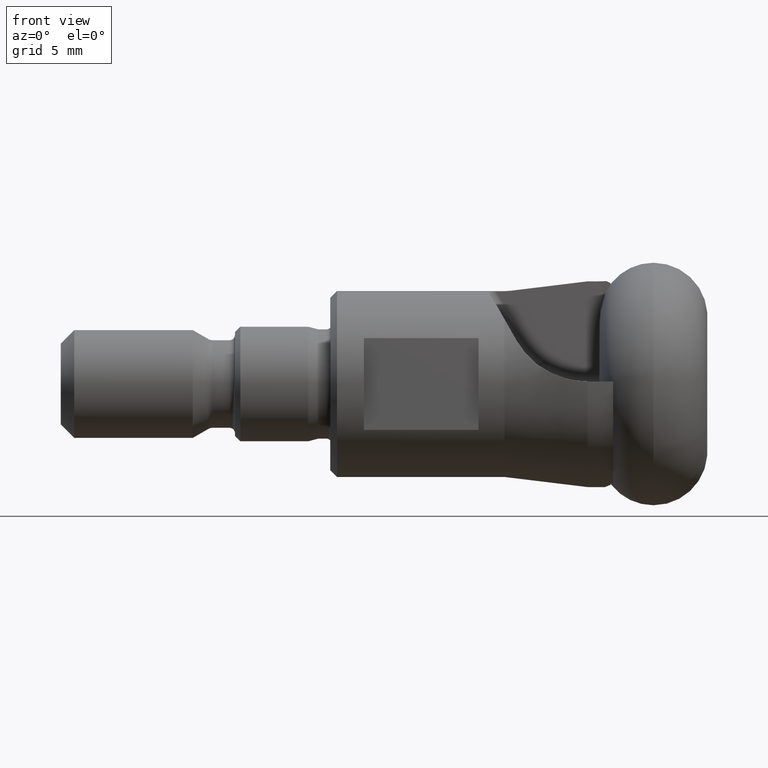
[diagram: clean part render]
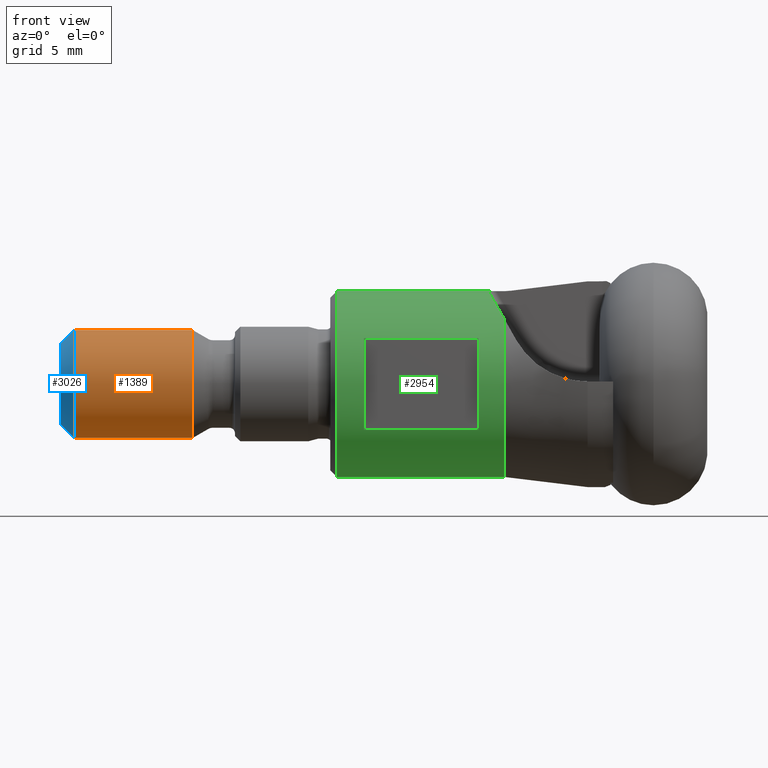
[diagram: same view with three faces highlighted in distinct colors, each labeled with its STEP entity id]
A machine part, front view with three faces highlighted in distinct colors.
Their STEP definitions:

[orange] entity #1389 — the highlighted cylindrical surface (partial cylindrical patch) has radius 4 mm, axis along (1, -0, -0).
#9 = AXIS2_PLACEMENT_3D ( 'NONE', #3181, #2158, #896 ) ;
#19 = VERTEX_POINT ( 'NONE', #1190 ) ;
#60 = DIRECTION ( 'NONE',  ( 1.000000000000000000, -0.0000000000000000000, -0.0000000000000000000 ) ) ;
#171 = CARTESIAN_POINT ( 'NONE',  ( 0.0000000000000000000, 0.0000000000000000000, -3.999999999999994700 ) ) ;
#175 = CIRCLE ( 'NONE', #2106, 3.999999999999994200 ) ;
#245 = VERTEX_POINT ( 'NONE', #580 ) ;
#265 = ORIENTED_EDGE ( 'NONE', *, *, #1737, .F. ) ;
#350 = ORIENTED_EDGE ( 'NONE', *, *, #2694, .F. ) ;
#411 = EDGE_LOOP ( 'NONE', ( #265, #1644, #1175, #350 ) ) ;
#436 = CIRCLE ( 'NONE', #9, 3.999999999999994700 ) ;
#489 = VERTEX_POINT ( 'NONE', #523 ) ;
#523 = CARTESIAN_POINT ( 'NONE',  ( -37.29999999999999700, 4.898587196589406900E-016, -3.999999999999994700 ) ) ;
#544 = CARTESIAN_POINT ( 'NONE',  ( -46.10000000000000100, 0.0000000000000000000, -3.999999999999994200 ) ) ;
#580 = CARTESIAN_POINT ( 'NONE',  ( -37.29999999999999700, 0.0000000000000000000, 3.999999999999994700 ) ) ;
#716 = DIRECTION ( 'NONE',  ( 1.000000000000000000, -0.0000000000000000000, -0.0000000000000000000 ) ) ;
#896 = DIRECTION ( 'NONE',  ( 0.0000000000000000000, 0.0000000000000000000, -1.000000000000000000 ) ) ;
#1081 = CARTESIAN_POINT ( 'NONE',  ( 0.0000000000000000000, 0.0000000000000000000, 0.0000000000000000000 ) ) ;
#1175 = ORIENTED_EDGE ( 'NONE', *, *, #2465, .T. ) ;
#1190 = CARTESIAN_POINT ( 'NONE',  ( -46.10000000000000100, 4.898587196589405900E-016, 3.999999999999994200 ) ) ;
#1211 = DIRECTION ( 'NONE',  ( 0.0000000000000000000, 0.0000000000000000000, -1.000000000000000000 ) ) ;
#1268 = VERTEX_POINT ( 'NONE', #544 ) ;
#1389 = ADVANCED_FACE ( 'NONE', ( #2549 ), #2839, .T. ) ;
#1428 = VECTOR ( 'NONE', #2494, 1000.000000000000000 ) ;
#1462 = CARTESIAN_POINT ( 'NONE',  ( -46.10000000000000100, 0.0000000000000000000, 0.0000000000000000000 ) ) ;
#1591 = DIRECTION ( 'NONE',  ( 0.0000000000000000000, 0.0000000000000000000, -1.000000000000000000 ) ) ;
#1644 = ORIENTED_EDGE ( 'NONE', *, *, #1744, .T. ) ;
#1737 = EDGE_CURVE ( 'NONE', #19, #245, #2887, .T. ) ;
#1744 = EDGE_CURVE ( 'NONE', #19, #1268, #175, .T. ) ;
#1854 = AXIS2_PLACEMENT_3D ( 'NONE', #1081, #60, #1591 ) ;
#2007 = CARTESIAN_POINT ( 'NONE',  ( 0.0000000000000000000, 4.898587196589406900E-016, 3.999999999999994700 ) ) ;
#2106 = AXIS2_PLACEMENT_3D ( 'NONE', #1462, #716, #1211 ) ;
#2158 = DIRECTION ( 'NONE',  ( 1.000000000000000000, -0.0000000000000000000, -0.0000000000000000000 ) ) ;
#2465 = EDGE_CURVE ( 'NONE', #1268, #489, #3258, .T. ) ;
#2494 = DIRECTION ( 'NONE',  ( 1.000000000000000000, -0.0000000000000000000, -0.0000000000000000000 ) ) ;
#2549 = FACE_OUTER_BOUND ( 'NONE', #411, .T. ) ;
#2694 = EDGE_CURVE ( 'NONE', #245, #489, #436, .T. ) ;
#2742 = DIRECTION ( 'NONE',  ( 1.000000000000000000, -0.0000000000000000000, -0.0000000000000000000 ) ) ;
#2839 = CYLINDRICAL_SURFACE ( 'NONE', #1854, 3.999999999999994700 ) ;
#2887 = LINE ( 'NONE', #2007, #3283 ) ;
#3181 = CARTESIAN_POINT ( 'NONE',  ( -37.29999999999999700, 0.0000000000000000000, 0.0000000000000000000 ) ) ;
#3258 = LINE ( 'NONE', #171, #1428 ) ;
#3283 = VECTOR ( 'NONE', #2742, 1000.000000000000000 ) ;

[blue] entity #3026 — the highlighted conical surface has half-angle 45 deg.
#19 = VERTEX_POINT ( 'NONE', #1190 ) ;
#115 = CARTESIAN_POINT ( 'NONE',  ( -46.10000000000000100, 0.0000000000000000000, -3.999999999999994200 ) ) ;
#175 = CIRCLE ( 'NONE', #2106, 3.999999999999994200 ) ;
#179 = CIRCLE ( 'NONE', #3174, 2.999999999999993300 ) ;
#544 = CARTESIAN_POINT ( 'NONE',  ( -46.10000000000000100, 0.0000000000000000000, -3.999999999999994200 ) ) ;
#552 = VERTEX_POINT ( 'NONE', #1579 ) ;
#601 = FACE_OUTER_BOUND ( 'NONE', #1471, .T. ) ;
#716 = DIRECTION ( 'NONE',  ( 1.000000000000000000, -0.0000000000000000000, -0.0000000000000000000 ) ) ;
#787 = LINE ( 'NONE', #3229, #3182 ) ;
#808 = VERTEX_POINT ( 'NONE', #966 ) ;
#839 = CARTESIAN_POINT ( 'NONE',  ( -46.10000000000000100, 0.0000000000000000000, 0.0000000000000000000 ) ) ;
#918 = ORIENTED_EDGE ( 'NONE', *, *, #2479, .F. ) ;
#966 = CARTESIAN_POINT ( 'NONE',  ( -47.10000000000000100, 4.286263797015728700E-016, 2.999999999999993300 ) ) ;
#1094 = EDGE_CURVE ( 'NONE', #552, #1268, #2075, .T. ) ;
#1105 = DIRECTION ( 'NONE',  ( 0.0000000000000000000, 0.0000000000000000000, -1.000000000000000000 ) ) ;
#1115 = CARTESIAN_POINT ( 'NONE',  ( -47.10000000000000100, 0.0000000000000000000, 0.0000000000000000000 ) ) ;
#1190 = CARTESIAN_POINT ( 'NONE',  ( -46.10000000000000100, 4.898587196589405900E-016, 3.999999999999994200 ) ) ;
#1211 = DIRECTION ( 'NONE',  ( 0.0000000000000000000, 0.0000000000000000000, -1.000000000000000000 ) ) ;
#1268 = VERTEX_POINT ( 'NONE', #544 ) ;
#1413 = ORIENTED_EDGE ( 'NONE', *, *, #1744, .F. ) ;
#1462 = CARTESIAN_POINT ( 'NONE',  ( -46.10000000000000100, 0.0000000000000000000, 0.0000000000000000000 ) ) ;
#1471 = EDGE_LOOP ( 'NONE', ( #918, #2067, #1829, #1413 ) ) ;
#1480 = EDGE_CURVE ( 'NONE', #808, #552, #179, .T. ) ;
#1579 = CARTESIAN_POINT ( 'NONE',  ( -47.10000000000000100, 0.0000000000000000000, -2.999999999999993300 ) ) ;
#1744 = EDGE_CURVE ( 'NONE', #19, #1268, #175, .T. ) ;
#1829 = ORIENTED_EDGE ( 'NONE', *, *, #1094, .T. ) ;
#2067 = ORIENTED_EDGE ( 'NONE', *, *, #1480, .T. ) ;
#2075 = LINE ( 'NONE', #115, #3165 ) ;
#2106 = AXIS2_PLACEMENT_3D ( 'NONE', #1462, #716, #1211 ) ;
#2136 = DIRECTION ( 'NONE',  ( 1.000000000000000000, -0.0000000000000000000, -0.0000000000000000000 ) ) ;
#2159 = DIRECTION ( 'NONE',  ( 0.7071067811865475700, 0.0000000000000000000, -0.7071067811865474600 ) ) ;
#2205 = DIRECTION ( 'NONE',  ( 0.7071067811865475700, 8.659560562354931600E-017, 0.7071067811865474600 ) ) ;
#2220 = AXIS2_PLACEMENT_3D ( 'NONE', #839, #2627, #1105 ) ;
#2479 = EDGE_CURVE ( 'NONE', #808, #19, #787, .T. ) ;
#2627 = DIRECTION ( 'NONE',  ( 1.000000000000000000, -0.0000000000000000000, -0.0000000000000000000 ) ) ;
#2909 = DIRECTION ( 'NONE',  ( 0.0000000000000000000, 0.0000000000000000000, -1.000000000000000000 ) ) ;
#3026 = ADVANCED_FACE ( 'NONE', ( #601 ), #3224, .T. ) ;
#3165 = VECTOR ( 'NONE', #2159, 1000.000000000000000 ) ;
#3174 = AXIS2_PLACEMENT_3D ( 'NONE', #1115, #2136, #2909 ) ;
#3182 = VECTOR ( 'NONE', #2205, 1000.000000000000000 ) ;
#3224 = CONICAL_SURFACE ( 'NONE', #2220, 3.999999999999994200, 0.7853981633974482800 ) ;
#3229 = CARTESIAN_POINT ( 'NONE',  ( -46.10000000000000100, 4.898587196589405900E-016, 3.999999999999994200 ) ) ;

[green] entity #2954 — the highlighted cylindrical surface (partial cylindrical patch) has radius 6.9 mm, axis along (1, -0, -0).
#31 = LINE ( 'NONE', #2383, #1238 ) ;
#72 = VECTOR ( 'NONE', #2632, 1000.000000000000000 ) ;
#108 = CARTESIAN_POINT ( 'NONE',  ( -24.60000000000000100, 0.0000000000000000000, 0.0000000000000000000 ) ) ;
#148 = ORIENTED_EDGE ( 'NONE', *, *, #741, .F. ) ;
#163 = EDGE_LOOP ( 'NONE', ( #2058, #1438, #711, #2278, #148, #2902, #3242, #879 ) ) ;
#190 = FACE_OUTER_BOUND ( 'NONE', #163, .T. ) ;
#215 = LINE ( 'NONE', #632, #72 ) ;
#223 = VERTEX_POINT ( 'NONE', #2340 ) ;
#244 = CIRCLE ( 'NONE', #1768, 6.899999999999998600 ) ;
#291 = CIRCLE ( 'NONE', #2237, 6.899999999999998600 ) ;
#348 = CYLINDRICAL_SURFACE ( 'NONE', #1650, 6.899999999999998600 ) ;
#437 = CARTESIAN_POINT ( 'NONE',  ( -26.60000000000000100, 8.450062914116734700E-016, 6.899999999999997700 ) ) ;
#449 = DIRECTION ( 'NONE',  ( 0.0000000000000000000, 0.0000000000000000000, -1.000000000000000000 ) ) ;
#508 = CARTESIAN_POINT ( 'NONE',  ( -14.76897280574238600, -0.6999999999999517700, 6.864400920692208500 ) ) ;
#522 = CARTESIAN_POINT ( 'NONE',  ( -15.30452766106162900, -1.199999999999952000, 6.794850991743683900 ) ) ;
#573 = CARTESIAN_POINT ( 'NONE',  ( 0.0000000000000000000, 0.0000000000000000000, -6.899999999999998600 ) ) ;
#632 = CARTESIAN_POINT ( 'NONE',  ( 0.0000000000000000000, -6.000000000000001800, -3.407345007480157200 ) ) ;
#665 = VECTOR ( 'NONE', #1927, 1000.000000000000000 ) ;
#681 = CARTESIAN_POINT ( 'NONE',  ( -14.76875074425068800, -3.938996049009159800, 5.851883618156448600 ) ) ;
#688 = AXIS2_PLACEMENT_3D ( 'NONE', #3130, #3184, #3153 ) ;
#708 = VECTOR ( 'NONE', #1320, 1000.000000000000000 ) ;
#711 = ORIENTED_EDGE ( 'NONE', *, *, #1075, .T. ) ;
#741 = EDGE_CURVE ( 'NONE', #2702, #1035, #2454, .T. ) ;
#794 = DIRECTION ( 'NONE',  ( 0.0000000000000000000, 0.0000000000000000000, -1.000000000000000000 ) ) ;
#818 = EDGE_CURVE ( 'NONE', #2663, #1732, #1326, .T. ) ;
#850 = CIRCLE ( 'NONE', #688, 6.899999999999998600 ) ;
#879 = ORIENTED_EDGE ( 'NONE', *, *, #2234, .F. ) ;
#913 = CARTESIAN_POINT ( 'NONE',  ( -15.15962975045093600, -2.644020910368085600, 6.539830669068878800 ) ) ;
#914 = CARTESIAN_POINT ( 'NONE',  ( -26.60000000000000100, 0.0000000000000000000, 0.0000000000000000000 ) ) ;
#940 = DIRECTION ( 'NONE',  ( -1.000000000000000000, -2.011296631198347200E-016, -0.0000000000000000000 ) ) ;
#970 = VERTEX_POINT ( 'NONE', #1496 ) ;
#981 = CARTESIAN_POINT ( 'NONE',  ( -15.04777263965825200, -0.7441036666017455400, 6.860365702013950800 ) ) ;
#1004 = VERTEX_POINT ( 'NONE', #2617 ) ;
#1031 = DIRECTION ( 'NONE',  ( 1.000000000000000000, -0.0000000000000000000, -0.0000000000000000000 ) ) ;
#1035 = VERTEX_POINT ( 'NONE', #2605 ) ;
#1075 = EDGE_CURVE ( 'NONE', #2182, #223, #1728, .T. ) ;
#1097 = DIRECTION ( 'NONE',  ( 0.0000000000000000000, -1.000000000000000000, 0.0000000000000000000 ) ) ;
#1157 = EDGE_CURVE ( 'NONE', #1035, #223, #850, .T. ) ;
#1170 = B_SPLINE_CURVE_WITH_KNOTS ( 'NONE', 3,
 ( #522, #1285, #2033, #2043, #2308, #981, #2288, #508 ),
 .UNSPECIFIED., .F., .F.,
 ( 4, 2, 2, 4 ),
 ( 4.336808689942017700E-019, 0.0002066999104266479600, 0.0004133998208532955000, 0.0008267996417065905600 ),
 .UNSPECIFIED. ) ;
#1191 = CARTESIAN_POINT ( 'NONE',  ( 0.0000000000000000000, -6.000000000000001800, 3.407345007480157200 ) ) ;
#1238 = VECTOR ( 'NONE', #3172, 1000.000000000000000 ) ;
#1283 = AXIS2_PLACEMENT_3D ( 'NONE', #108, #2894, #1097 ) ;
#1285 = CARTESIAN_POINT ( 'NONE',  ( -15.31139833881096000, -1.131528327105431500, 6.806943384582503100 ) ) ;
#1312 = EDGE_CURVE ( 'NONE', #2702, #1732, #1170, .T. ) ;
#1320 = DIRECTION ( 'NONE',  ( 1.000000000000000000, -0.0000000000000000000, -0.0000000000000000000 ) ) ;
#1326 = LINE ( 'NONE', #1454, #1923 ) ;
#1438 = ORIENTED_EDGE ( 'NONE', *, *, #2140, .T. ) ;
#1441 = EDGE_CURVE ( 'NONE', #2441, #2684, #31, .T. ) ;
#1454 = CARTESIAN_POINT ( 'NONE',  ( 0.0000000000000000000, -0.6999999999999517700, 6.864400920692208500 ) ) ;
#1457 = VERTEX_POINT ( 'NONE', #1872 ) ;
#1496 = CARTESIAN_POINT ( 'NONE',  ( -16.10000000000000100, -6.000000000000001800, -3.407345007480157200 ) ) ;
#1566 = EDGE_CURVE ( 'NONE', #1457, #2562, #3114, .T. ) ;
#1615 = EDGE_CURVE ( 'NONE', #970, #1457, #244, .T. ) ;
#1630 = ORIENTED_EDGE ( 'NONE', *, *, #1566, .F. ) ;
#1639 = CARTESIAN_POINT ( 'NONE',  ( -14.17000000000000000, -0.6999999999999517700, 6.864400920692209400 ) ) ;
#1647 = CARTESIAN_POINT ( 'NONE',  ( -26.60000000000000100, 0.0000000000000000000, -6.899999999999997700 ) ) ;
#1650 = AXIS2_PLACEMENT_3D ( 'NONE', #3107, #1031, #794 ) ;
#1653 = CIRCLE ( 'NONE', #2056, 6.899999999999997700 ) ;
#1667 = CARTESIAN_POINT ( 'NONE',  ( -15.30452766106162900, -1.199999999999952000, 6.794850991743683900 ) ) ;
#1710 = DIRECTION ( 'NONE',  ( 1.000000000000000000, -0.0000000000000000000, -0.0000000000000000000 ) ) ;
#1728 = LINE ( 'NONE', #573, #708 ) ;
#1732 = VERTEX_POINT ( 'NONE', #2496 ) ;
#1768 = AXIS2_PLACEMENT_3D ( 'NONE', #2464, #940, #2716 ) ;
#1771 = CIRCLE ( 'NONE', #1283, 6.899999999999998600 ) ;
#1872 = CARTESIAN_POINT ( 'NONE',  ( -16.10000000000000100, -6.000000000000001800, 3.407345007480157200 ) ) ;
#1923 = VECTOR ( 'NONE', #3001, 1000.000000000000000 ) ;
#1927 = DIRECTION ( 'NONE',  ( -1.000000000000000000, 0.0000000000000000000, 0.0000000000000000000 ) ) ;
#1970 = ORIENTED_EDGE ( 'NONE', *, *, #2313, .F. ) ;
#2033 = CARTESIAN_POINT ( 'NONE',  ( -15.30104466597626200, -1.062144169060459200, 6.818056559347926500 ) ) ;
#2043 = CARTESIAN_POINT ( 'NONE',  ( -15.24803329283332900, -0.9362768551554845300, 6.836477977207016100 ) ) ;
#2056 = AXIS2_PLACEMENT_3D ( 'NONE', #914, #3209, #3195 ) ;
#2058 = ORIENTED_EDGE ( 'NONE', *, *, #1441, .F. ) ;
#2140 = EDGE_CURVE ( 'NONE', #2441, #2182, #1653, .T. ) ;
#2182 = VERTEX_POINT ( 'NONE', #1647 ) ;
#2234 = EDGE_CURVE ( 'NONE', #2684, #2663, #291, .T. ) ;
#2237 = AXIS2_PLACEMENT_3D ( 'NONE', #3239, #1710, #449 ) ;
#2278 = ORIENTED_EDGE ( 'NONE', *, *, #1157, .F. ) ;
#2288 = CARTESIAN_POINT ( 'NONE',  ( -14.90830965022720500, -0.6999999999997381700, 6.864400920692232500 ) ) ;
#2308 = CARTESIAN_POINT ( 'NONE',  ( -15.20551302534911100, -0.8798208429133321800, 6.843828770679474300 ) ) ;
#2313 = EDGE_CURVE ( 'NONE', #1004, #970, #215, .T. ) ;
#2340 = CARTESIAN_POINT ( 'NONE',  ( -14.17000000000000000, 0.0000000000000000000, -6.899999999999998600 ) ) ;
#2383 = CARTESIAN_POINT ( 'NONE',  ( 0.0000000000000000000, 8.450062914116734700E-016, 6.899999999999998600 ) ) ;
#2407 = CARTESIAN_POINT ( 'NONE',  ( -14.17000000000000000, 8.450062914116736700E-016, 6.899999999999999500 ) ) ;
#2441 = VERTEX_POINT ( 'NONE', #437 ) ;
#2454 =( BOUNDED_CURVE ( )  B_SPLINE_CURVE ( 3, ( #1667, #913, #681, #2947 ),
 .UNSPECIFIED., .F., .F. ) 
 B_SPLINE_CURVE_WITH_KNOTS ( ( 4, 4 ),
 ( 3.316394536963486800, 3.943448444371522800 ),
 .UNSPECIFIED. ) 
 CURVE ( )  GEOMETRIC_REPRESENTATION_ITEM ( )  RATIONAL_B_SPLINE_CURVE ( ( 1.000000000000000000, 0.9675011474696619800, 0.9675011474696619800, 1.000000000000000000 ) ) 
 REPRESENTATION_ITEM ( '' )  );
#2464 = CARTESIAN_POINT ( 'NONE',  ( -16.10000000000000100, 0.0000000000000000000, 0.0000000000000000000 ) ) ;
#2496 = CARTESIAN_POINT ( 'NONE',  ( -14.76897280574238600, -0.6999999999999517700, 6.864400920692208500 ) ) ;
#2541 = ORIENTED_EDGE ( 'NONE', *, *, #1615, .F. ) ;
#2551 = CARTESIAN_POINT ( 'NONE',  ( -24.60000000000000100, -6.000000000000001800, 3.407345007480158100 ) ) ;
#2562 = VERTEX_POINT ( 'NONE', #2551 ) ;
#2605 = CARTESIAN_POINT ( 'NONE',  ( -14.17000000000000000, -4.958669797739723600, 4.798082308275242600 ) ) ;
#2617 = CARTESIAN_POINT ( 'NONE',  ( -24.60000000000000100, -6.000000000000001800, -3.407345007480158100 ) ) ;
#2632 = DIRECTION ( 'NONE',  ( 1.000000000000000000, -0.0000000000000000000, -0.0000000000000000000 ) ) ;
#2663 = VERTEX_POINT ( 'NONE', #1639 ) ;
#2670 = CARTESIAN_POINT ( 'NONE',  ( -15.30452766106162900, -1.199999999999952000, 6.794850991743683900 ) ) ;
#2684 = VERTEX_POINT ( 'NONE', #2407 ) ;
#2702 = VERTEX_POINT ( 'NONE', #2670 ) ;
#2716 = DIRECTION ( 'NONE',  ( 0.0000000000000000000, 1.000000000000000000, 0.0000000000000000000 ) ) ;
#2811 = FACE_BOUND ( 'NONE', #2995, .T. ) ;
#2894 = DIRECTION ( 'NONE',  ( 1.000000000000000000, 2.011296631198347200E-016, 0.0000000000000000000 ) ) ;
#2902 = ORIENTED_EDGE ( 'NONE', *, *, #1312, .T. ) ;
#2947 = CARTESIAN_POINT ( 'NONE',  ( -14.17000000000000000, -4.958669797739723600, 4.798082308275242600 ) ) ;
#2954 = ADVANCED_FACE ( 'NONE', ( #190, #2811 ), #348, .T. ) ;
#2991 = ORIENTED_EDGE ( 'NONE', *, *, #3267, .F. ) ;
#2995 = EDGE_LOOP ( 'NONE', ( #2991, #1630, #2541, #1970 ) ) ;
#3001 = DIRECTION ( 'NONE',  ( -1.000000000000000000, 0.0000000000000000000, 0.0000000000000000000 ) ) ;
#3107 = CARTESIAN_POINT ( 'NONE',  ( 0.0000000000000000000, 0.0000000000000000000, 0.0000000000000000000 ) ) ;
#3114 = LINE ( 'NONE', #1191, #665 ) ;
#3130 = CARTESIAN_POINT ( 'NONE',  ( -14.17000000000000000, 0.0000000000000000000, 0.0000000000000000000 ) ) ;
#3153 = DIRECTION ( 'NONE',  ( 0.0000000000000000000, 0.0000000000000000000, -1.000000000000000000 ) ) ;
#3172 = DIRECTION ( 'NONE',  ( 1.000000000000000000, -0.0000000000000000000, -0.0000000000000000000 ) ) ;
#3184 = DIRECTION ( 'NONE',  ( 1.000000000000000000, -0.0000000000000000000, -0.0000000000000000000 ) ) ;
#3195 = DIRECTION ( 'NONE',  ( 0.0000000000000000000, 0.0000000000000000000, -1.000000000000000000 ) ) ;
#3209 = DIRECTION ( 'NONE',  ( 1.000000000000000000, -0.0000000000000000000, -0.0000000000000000000 ) ) ;
#3239 = CARTESIAN_POINT ( 'NONE',  ( -14.17000000000000000, 0.0000000000000000000, 0.0000000000000000000 ) ) ;
#3242 = ORIENTED_EDGE ( 'NONE', *, *, #818, .F. ) ;
#3267 = EDGE_CURVE ( 'NONE', #2562, #1004, #1771, .T. ) ;